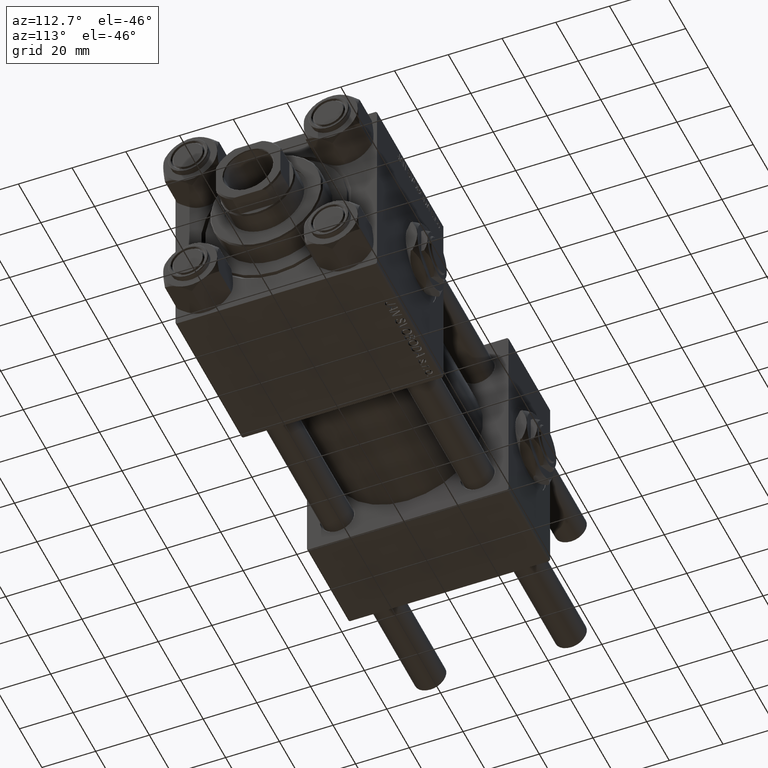
[diagram: clean part render]
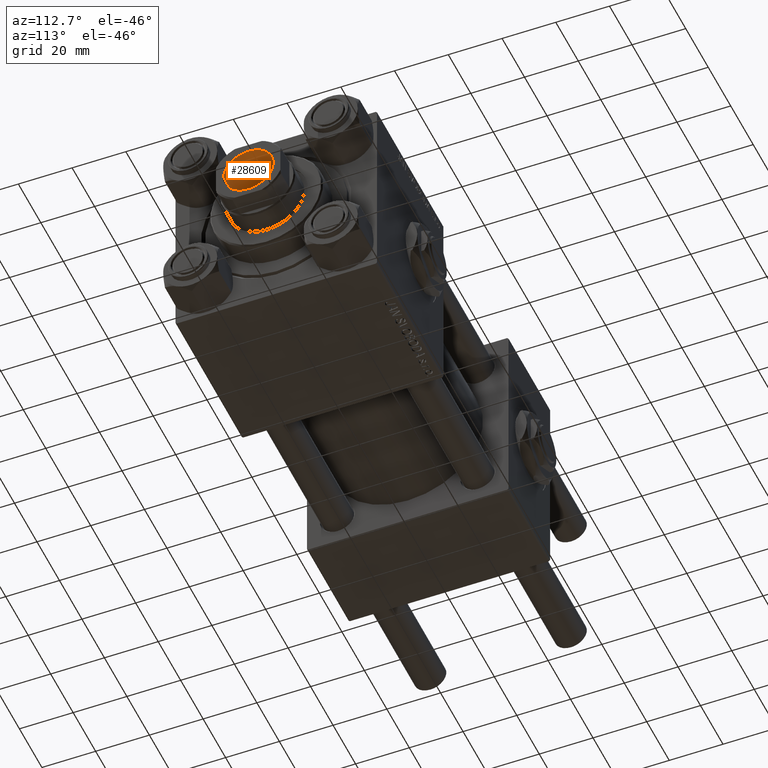
[diagram: same view with one face highlighted and labeled with its STEP entity id]
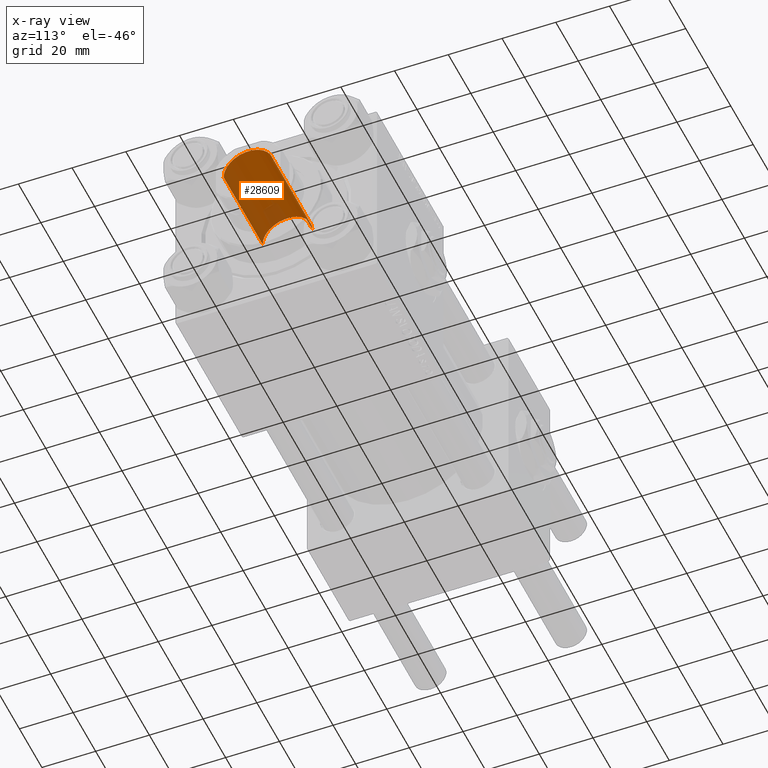
[diagram: x-ray of the same camera — body ghosted, the highlighted face saturated]
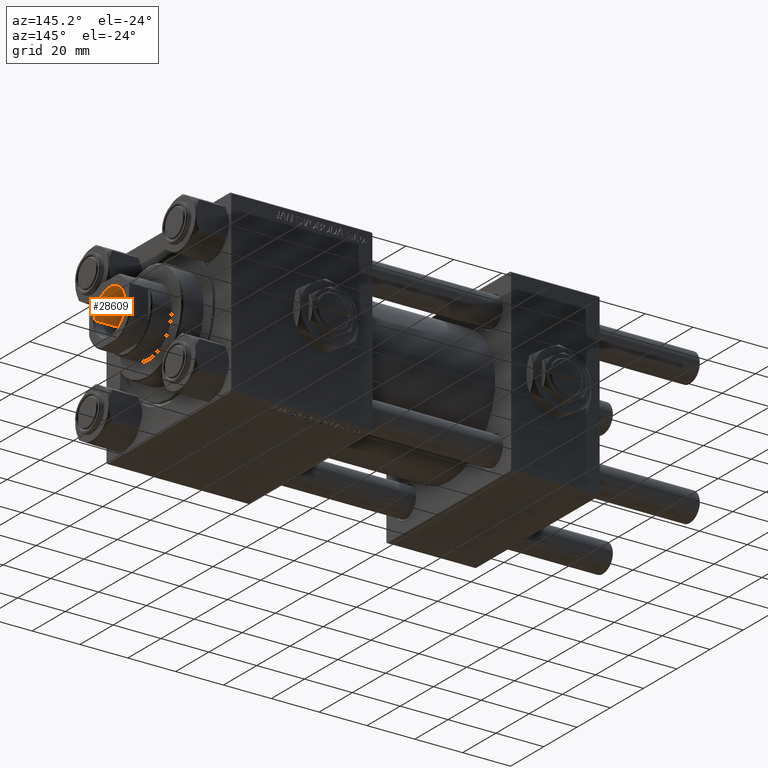
[diagram: same view with one face highlighted and labeled with its STEP entity id]
A machine part, auxiliary view. The second image highlights one B-rep face of the part: STEP entity #28609.
The next image is the same camera in x-ray: the body ghosted, the highlighted face saturated — about 9% of this face is hidden behind the body in this view.
A second angle (auxiliary view) of the same face is appended — the face is thin or edge-on in the first view.
In plain terms, the highlighted cylindrical surface (edge-blend (fillet) strip) has radius 9.25 mm, axis along (1, 0, -0).
Its self-contained STEP definition (entity closure, byte-faithful):
#200 = VERTEX_POINT ( 'NONE', #10083 ) ;
#826 = CARTESIAN_POINT ( 'NONE',  ( 9.249999999999994671, 0.000000000000000000, 141.7000000000000171 ) ) ;
#2561 = CARTESIAN_POINT ( 'NONE',  ( -9.249999999999992895, 1.132798289211300712E-15, 107.0000000000000142 ) ) ;
#3043 = VERTEX_POINT ( 'NONE', #2561 ) ;
#7711 = DIRECTION ( 'NONE',  ( -0.000000000000000000, -0.000000000000000000, 1.000000000000000000 ) ) ;
#8183 = CARTESIAN_POINT ( 'NONE',  ( -9.249999999999994671, 1.132798289211300909E-15, 142.0000000000000284 ) ) ;
#9406 = CARTESIAN_POINT ( 'NONE',  ( 0.000000000000000000, 0.000000000000000000, 142.0000000000000284 ) ) ;
#10083 = CARTESIAN_POINT ( 'NONE',  ( -9.249999999999994671, 1.132798289211300909E-15, 141.7000000000000171 ) ) ;
#10084 = EDGE_CURVE ( 'NONE', #200, #16936, #39709, .T. ) ;
#10790 = DIRECTION ( 'NONE',  ( 0.000000000000000000, 0.000000000000000000, 1.000000000000000000 ) ) ;
#11843 = AXIS2_PLACEMENT_3D ( 'NONE', #9406, #40653, #36967 ) ;
#13094 = CYLINDRICAL_SURFACE ( 'NONE', #11843, 9.249999999999994671 ) ;
#16936 = VERTEX_POINT ( 'NONE', #826 ) ;
#16952 = EDGE_CURVE ( 'NONE', #36931, #16936, #28663, .T. ) ;
#16956 = ORIENTED_EDGE ( 'NONE', *, *, #16952, .F. ) ;
#18302 = CARTESIAN_POINT ( 'NONE',  ( 9.249999999999992895, 0.000000000000000000, 107.0000000000000142 ) ) ;
#18405 = VECTOR ( 'NONE', #31814, 1000.000000000000000 ) ;
#19230 = LINE ( 'NONE', #8183, #18405 ) ;
#22149 = EDGE_LOOP ( 'NONE', ( #38105, #41838, #24872, #16956 ) ) ;
#22379 = VECTOR ( 'NONE', #40724, 1000.000000000000000 ) ;
#24712 = CARTESIAN_POINT ( 'NONE',  ( 9.249999999999994671, 0.000000000000000000, 142.0000000000000284 ) ) ;
#24872 = ORIENTED_EDGE ( 'NONE', *, *, #10084, .T. ) ;
#26745 = EDGE_CURVE ( 'NONE', #3043, #36931, #31779, .T. ) ;
#27847 = EDGE_CURVE ( 'NONE', #3043, #200, #19230, .T. ) ;
#28609 = ADVANCED_FACE ( 'NONE', ( #40909 ), #13094, .F. ) ;
#28663 = LINE ( 'NONE', #24712, #22379 ) ;
#31511 = CARTESIAN_POINT ( 'NONE',  ( 0.000000000000000000, 0.000000000000000000, 141.7000000000000171 ) ) ;
#31779 = CIRCLE ( 'NONE', #50181, 9.249999999999992895 ) ;
#31814 = DIRECTION ( 'NONE',  ( -0.000000000000000000, -0.000000000000000000, 1.000000000000000000 ) ) ;
#36931 = VERTEX_POINT ( 'NONE', #18302 ) ;
#36967 = DIRECTION ( 'NONE',  ( 1.000000000000000000, 0.000000000000000000, 0.000000000000000000 ) ) ;
#38105 = ORIENTED_EDGE ( 'NONE', *, *, #26745, .F. ) ;
#38599 = DIRECTION ( 'NONE',  ( 1.000000000000000000, 0.000000000000000000, 0.000000000000000000 ) ) ;
#39709 = CIRCLE ( 'NONE', #44735, 9.249999999999994671 ) ;
#40653 = DIRECTION ( 'NONE',  ( -0.000000000000000000, -0.000000000000000000, 1.000000000000000000 ) ) ;
#40724 = DIRECTION ( 'NONE',  ( -0.000000000000000000, -0.000000000000000000, 1.000000000000000000 ) ) ;
#40909 = FACE_OUTER_BOUND ( 'NONE', #22149, .T. ) ;
#41838 = ORIENTED_EDGE ( 'NONE', *, *, #27847, .T. ) ;
#44735 = AXIS2_PLACEMENT_3D ( 'NONE', #31511, #10790, #38599 ) ;
#47601 = CARTESIAN_POINT ( 'NONE',  ( 0.000000000000000000, 0.000000000000000000, 107.0000000000000142 ) ) ;
#50181 = AXIS2_PLACEMENT_3D ( 'NONE', #47601, #7711, #51009 ) ;
#51009 = DIRECTION ( 'NONE',  ( 1.000000000000000000, 0.000000000000000000, 0.000000000000000000 ) ) ;